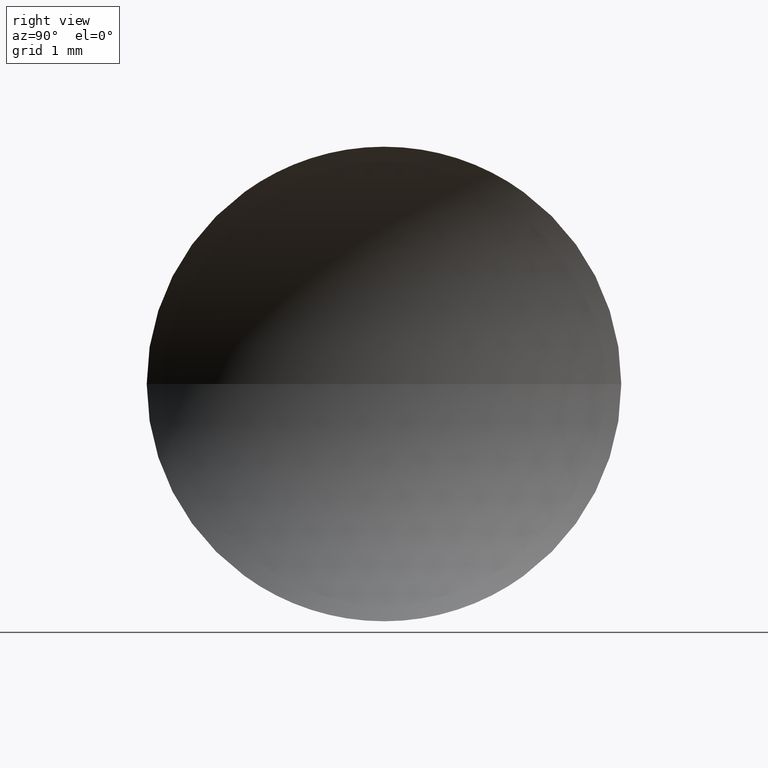
[diagram: clean part render]
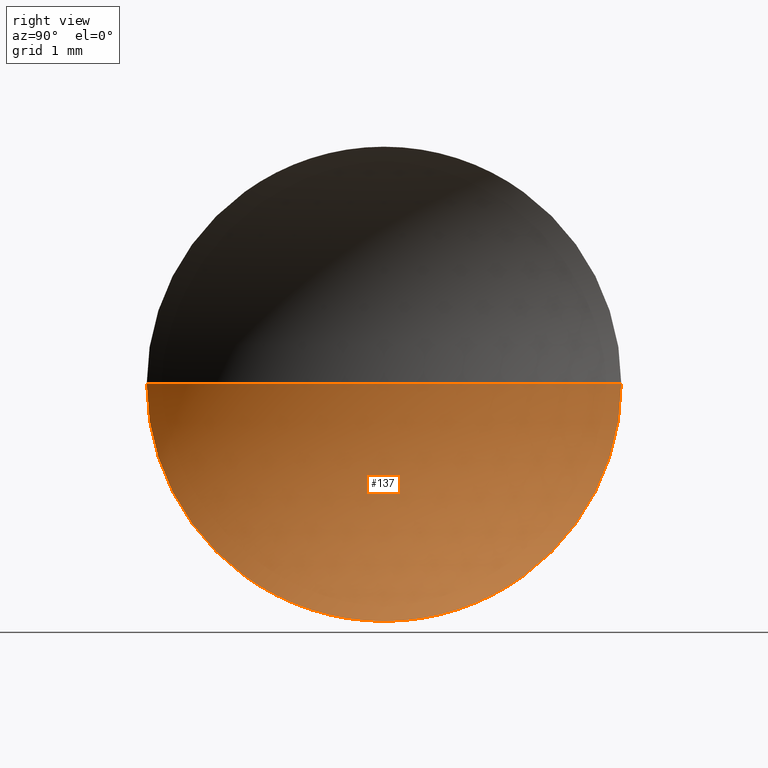
[diagram: same view with one face highlighted and labeled with its STEP entity id]
A machine part, right view. The second image highlights one B-rep face of the part: STEP entity #137.
In plain terms, the highlighted spherical surface has radius 2.5803 mm.
Its self-contained STEP definition (entity closure, byte-faithful):
#2 = CARTESIAN_POINT ( 'NONE',  ( 13.53286323056900100, 8.522260287298740500, 2.449293598294707900E-016 ) ) ;
#4 = VERTEX_POINT ( 'NONE', #166 ) ;
#19 = DIRECTION ( 'NONE',  ( 0.0000000000000000000, -1.000000000000000000, 0.0000000000000000000 ) ) ;
#20 = ORIENTED_EDGE ( 'NONE', *, *, #77, .F. ) ;
#25 = AXIS2_PLACEMENT_3D ( 'NONE', #127, #30, #43 ) ;
#30 = DIRECTION ( 'NONE',  ( 0.0000000000000000000, -1.224646799147353200E-016, 1.000000000000000000 ) ) ;
#33 = AXIS2_PLACEMENT_3D ( 'NONE', #130, #179, #19 ) ;
#41 = EDGE_LOOP ( 'NONE', ( #20, #85, #150, #142 ) ) ;
#43 = DIRECTION ( 'NONE',  ( 0.0000000000000000000, -1.000000000000000000, -1.224646799147353500E-016 ) ) ;
#48 = DIRECTION ( 'NONE',  ( 0.0000000000000000000, 0.0000000000000000000, 1.000000000000000000 ) ) ;
#53 = AXIS2_PLACEMENT_3D ( 'NONE', #81, #55, #54 ) ;
#54 = DIRECTION ( 'NONE',  ( 0.0000000000000000000, 0.0000000000000000000, 1.000000000000000000 ) ) ;
#55 = DIRECTION ( 'NONE',  ( -1.000000000000000000, -0.0000000000000000000, -0.0000000000000000000 ) ) ;
#60 = CIRCLE ( 'NONE', #25, 2.580263157894739900 ) ;
#62 = EDGE_CURVE ( 'NONE', #4, #116, #95, .T. ) ;
#68 = EDGE_CURVE ( 'NONE', #163, #134, #60, .T. ) ;
#71 = CARTESIAN_POINT ( 'NONE',  ( 13.53286323056900100, 6.522260287298739600, 0.0000000000000000000 ) ) ;
#77 = EDGE_CURVE ( 'NONE', #163, #4, #184, .T. ) ;
#81 = CARTESIAN_POINT ( 'NONE',  ( 13.53286323056900100, 6.522260287298739600, 0.0000000000000000000 ) ) ;
#84 = EDGE_CURVE ( 'NONE', #116, #134, #99, .T. ) ;
#85 = ORIENTED_EDGE ( 'NONE', *, *, #68, .T. ) ;
#86 = CARTESIAN_POINT ( 'NONE',  ( 13.53286323056900100, 4.522260287298738700, 0.0000000000000000000 ) ) ;
#90 = DIRECTION ( 'NONE',  ( -1.000000000000000000, 0.0000000000000000000, 0.0000000000000000000 ) ) ;
#95 = CIRCLE ( 'NONE', #149, 2.000000000000000900 ) ;
#99 = CIRCLE ( 'NONE', #128, 2.580263157894739900 ) ;
#113 = SPHERICAL_SURFACE ( 'NONE', #33, 2.580263157894739900 ) ;
#114 = CARTESIAN_POINT ( 'NONE',  ( 12.58286323056900200, 6.522260287298739600, 0.0000000000000000000 ) ) ;
#116 = VERTEX_POINT ( 'NONE', #86 ) ;
#127 = CARTESIAN_POINT ( 'NONE',  ( 15.16312638846374100, 6.522260287298739600, 0.0000000000000000000 ) ) ;
#128 = AXIS2_PLACEMENT_3D ( 'NONE', #129, #158, #90 ) ;
#129 = CARTESIAN_POINT ( 'NONE',  ( 15.16312638846374100, 6.522260287298739600, 0.0000000000000000000 ) ) ;
#130 = CARTESIAN_POINT ( 'NONE',  ( 15.16312638846374100, 6.522260287298739600, 0.0000000000000000000 ) ) ;
#134 = VERTEX_POINT ( 'NONE', #114 ) ;
#137 = ADVANCED_FACE ( 'NONE', ( #147 ), #113, .F. ) ;
#142 = ORIENTED_EDGE ( 'NONE', *, *, #62, .F. ) ;
#147 = FACE_OUTER_BOUND ( 'NONE', #41, .T. ) ;
#149 = AXIS2_PLACEMENT_3D ( 'NONE', #71, #167, #48 ) ;
#150 = ORIENTED_EDGE ( 'NONE', *, *, #84, .F. ) ;
#158 = DIRECTION ( 'NONE',  ( 0.0000000000000000000, 0.0000000000000000000, -1.000000000000000000 ) ) ;
#163 = VERTEX_POINT ( 'NONE', #2 ) ;
#166 = CARTESIAN_POINT ( 'NONE',  ( 13.53286323056900100, 6.522260287298739600, -2.000000000000000900 ) ) ;
#167 = DIRECTION ( 'NONE',  ( -1.000000000000000000, -0.0000000000000000000, -0.0000000000000000000 ) ) ;
#179 = DIRECTION ( 'NONE',  ( 0.0000000000000000000, 0.0000000000000000000, 1.000000000000000000 ) ) ;
#184 = CIRCLE ( 'NONE', #53, 2.000000000000000900 ) ;